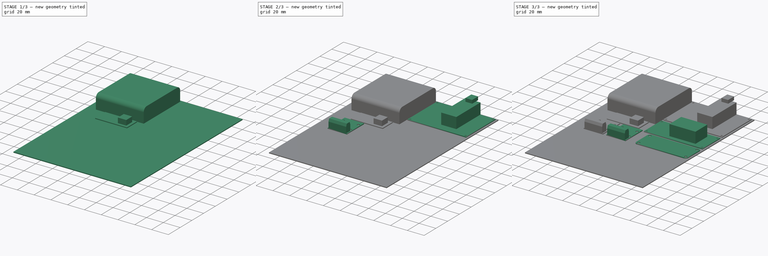
[diagram: build sequence overview — one tinted view per stage of 3, left to right]
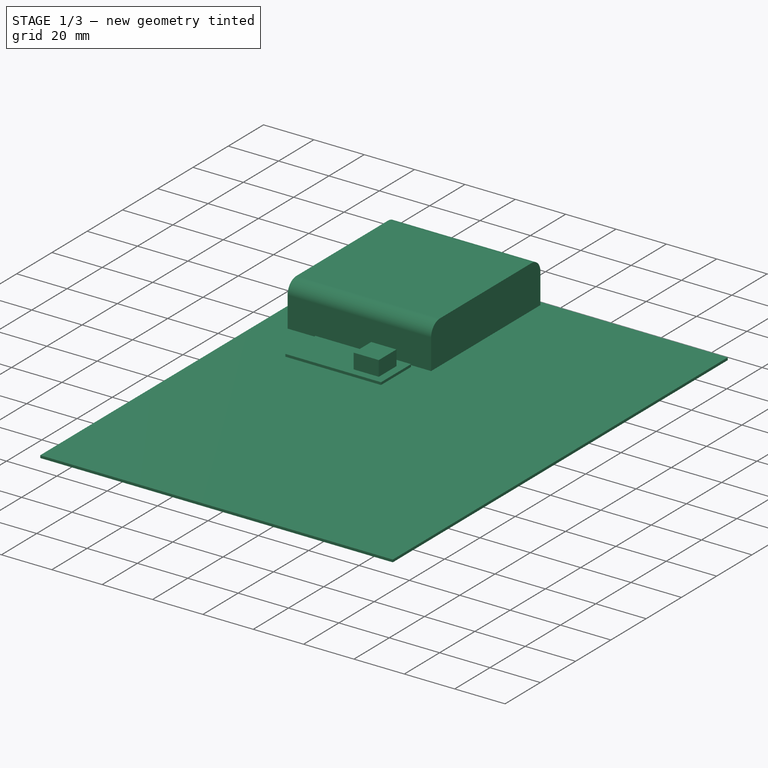
[diagram: stage 1 of 3 — iso view after this stage's code; geometry added in this stage tinted green]
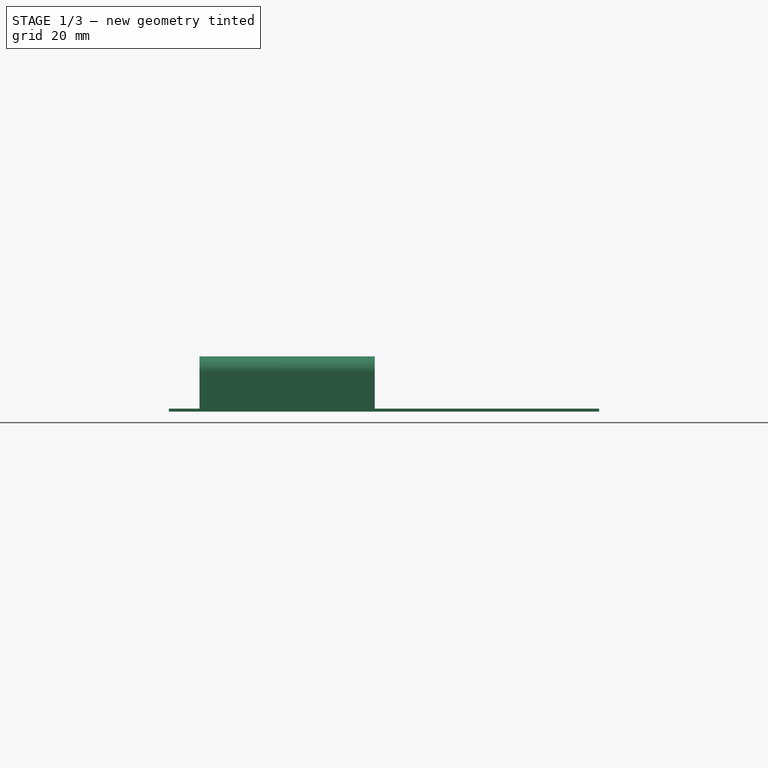
[diagram: stage 1 of 3 — front view after this stage's code; geometry added in this stage tinted green]
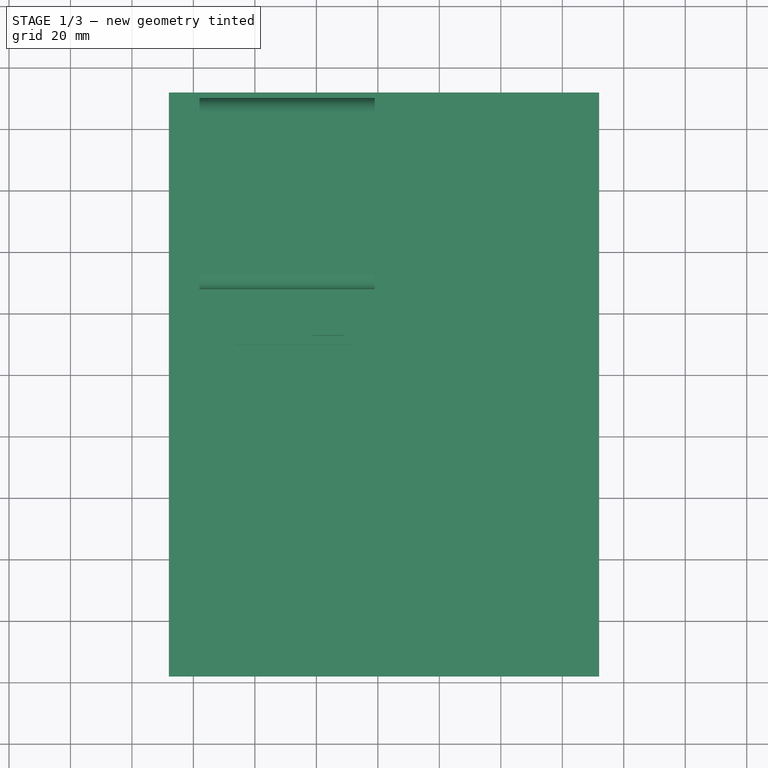
[diagram: stage 1 of 3 — top view after this stage's code; geometry added in this stage tinted green]
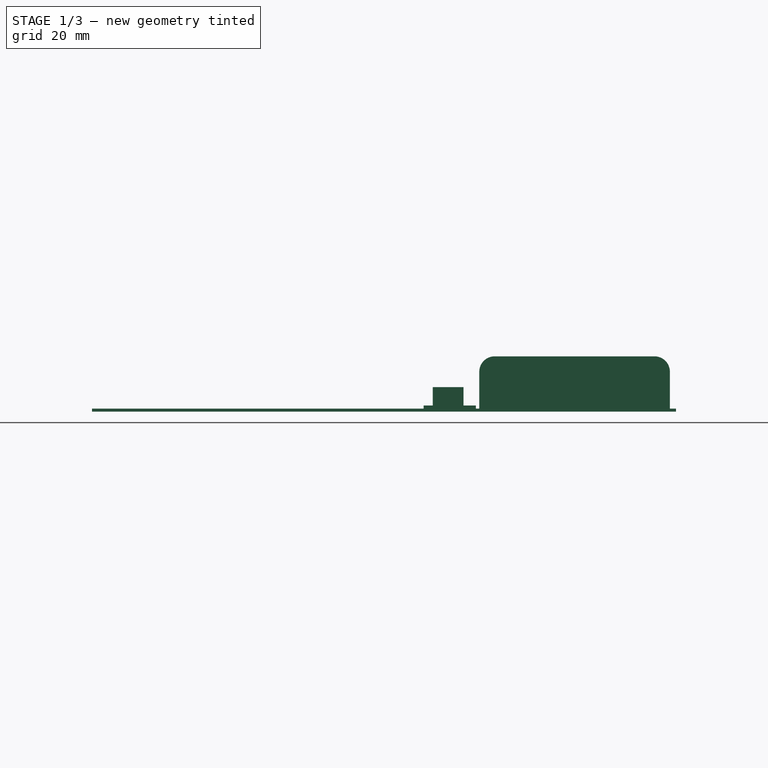
[diagram: stage 1 of 3 — right view after this stage's code; geometry added in this stage tinted green]
FCSTD DOCUMENT  (FreeCAD 0.19R24291 (Git))
Label: assemblage
License: All rights reserved
LicenseURL: http://en.wikipedia.org/wiki/All_rights_reserved
objects: App::FeaturePython×28, Part::FeaturePython×7, Sketcher::SketchObject×2, PartDesign::Pad×1, PartDesign::Body×1
note: 12 computed .brp shape members not serialized (recipe doc carries the construction recipe); baked Part::Feature solids carry a one-line shape summary decoded from their .brp

FEATURE [App::FeaturePython] planeCoincident_001  label="planeCoincident_001__arduino_board_001"  # a2plus constraint (typed FeaturePython)
  Object1 = b_TCA9548A_board_001_
  Object2 = b_arduino_board_001_
  ParentTreeObject = -> b_TCA9548A_board_001_
  SubElement1 = Face5
  SubElement2 = Face5
  Suppressed = false
  Type = plane
  directionConstraint = 0
  offset = 0
FEATURE [App::FeaturePython] planeCoincident_001_mirror  label="planeCoincident_001__TCA9548A_board_001"  # a2plus constraint (typed FeaturePython)
  Object1 = b_TCA9548A_board_001_
  Object2 = b_arduino_board_001_
  ParentTreeObject = -> b_arduino_board_001_
  SubElement1 = Face5
  SubElement2 = Face5
  Suppressed = false
  Type = plane
  directionConstraint = 0
  offset = 0
FEATURE [App::FeaturePython] planeCoincident_002  label="planeCoincident_002__arduino_board_001"  # a2plus constraint (typed FeaturePython)
  Object1 = b_TCA9548A_board_001_
  Object2 = b_arduino_board_001_
  ParentTreeObject = -> b_TCA9548A_board_001_
  SubElement1 = Face2
  SubElement2 = Face2
  Suppressed = false
  Type = plane
  directionConstraint = 0
  offset = 0
FEATURE [App::FeaturePython] planeCoincident_002_mirror  label="planeCoincident_002__TCA9548A_board_001"  # a2plus constraint (typed FeaturePython)
  Object1 = b_TCA9548A_board_001_
  Object2 = b_arduino_board_001_
  ParentTreeObject = -> b_arduino_board_001_
  SubElement1 = Face2
  SubElement2 = Face2
  Suppressed = false
  Type = plane
  directionConstraint = 0
  offset = 0
FEATURE [Sketcher::SketchObject] Sketch
  FullyConstrained = true
  MapMode = 5
  Support = -> [XY_Plane]
  sketch-geometry (4):
    g0: LineSegment StartX=72 StartY=52 StartZ=0 EndX=-68 EndY=52 EndZ=0
    g1: LineSegment StartX=-68 StartY=52 StartZ=0 EndX=-68 EndY=-138 EndZ=0
    g2: LineSegment StartX=-68 StartY=-138 StartZ=0 EndX=72 EndY=-138 EndZ=0
    g3: LineSegment StartX=72 StartY=-138 StartZ=0 EndX=72 EndY=52 EndZ=0
  constraints (12):
    c: Coincident(g0,g1)
    c: Coincident(g1,g2)
    c: Coincident(g2,g3)
    c: Coincident(g3,g0)
    c: Horizontal(g0)
    c: Horizontal(g2)
    c: Vertical(g1)
    c: Vertical(g3)
    c: DistanceY(g-1,g0) = 52
    c: DistanceX(g-1,g0) = 72
    c: DistanceX(g2,g2) = 140
    c: DistanceY(g3,g3) = 190
FEATURE [PartDesign::Pad] Pad
  Direction = (1,1,1)
  Length = 1
  Length2 = 100
  Profile = -> Sketch
  Reversed = true
  Type = 0
FEATURE [Part::FeaturePython] b_4AA_001_  label="4AA_001"  # a2plus imported part (geometry in sourceFile) (typed FeaturePython)
  Placement = pos=(-1,-12,8.60465e-06) rot=(0,0,1;1.5708rad)
  a2p_Version = V0.1
  fixedPosition = false
  objectType = a2pPart
  sourceFile = ./4AA.FCStd
  subassemblyImport = false
  timeLastImport = 1.62457e+09
  updateColors = true
FEATURE [App::FeaturePython] planeCoincident_006  label="planeCoincident_006__PCA9685_board_001"  # a2plus constraint (typed FeaturePython)
  Object1 = b_TCA9548A_board_001_
  Object2 = b_PCA9685_board_001_
  ParentTreeObject = -> b_TCA9548A_board_001_
  SubElement1 = Face3
  SubElement2 = Face7
  Suppressed = false
  Type = plane
  directionConstraint = 0
  offset = 0
FEATURE [App::FeaturePython] planeCoincident_006_mirror  label="planeCoincident_006__TCA9548A_board_001"  # a2plus constraint (typed FeaturePython)
  Object1 = b_TCA9548A_board_001_
  Object2 = b_PCA9685_board_001_
  ParentTreeObject = -> b_PCA9685_board_001_
  SubElement1 = Face3
  SubElement2 = Face7
  Suppressed = false
  Type = plane
  directionConstraint = 0
  offset = 0
FEATURE [App::FeaturePython] planeCoincident_009_mirror  label="planeCoincident_009__hbridge_002"  # a2plus constraint (typed FeaturePython)
  Object1 = b_hbridge_001_001
  Object2 = b_PCA9685_board_001_
  ParentTreeObject = -> b_PCA9685_board_001_
  SubElement1 = Face4
  SubElement2 = Face1
  Suppressed = false
  Type = plane
  directionConstraint = 0
  offset = 0
FEATURE [App::FeaturePython] planeCoincident_009  label="planeCoincident_009__PCA9685_board_001"  # a2plus constraint (typed FeaturePython)
  Object1 = b_hbridge_001_001
  Object2 = b_PCA9685_board_001_
  ParentTreeObject = -> b_hbridge_001_001
  SubElement1 = Face4
  SubElement2 = Face1
  Suppressed = false
  Type = plane
  directionConstraint = 0
  offset = 0
FEATURE [App::FeaturePython] planesParallel_003  label="planesParallel_003__hbridge_001"  # a2plus constraint (typed FeaturePython)
  Object1 = b_hbridge_001_001
  Object2 = b_hbridge_001_
  ParentTreeObject = -> b_hbridge_001_001
  SubElement1 = Face10
  SubElement2 = Face11
  Suppressed = false
  Type = planesParallel
  directionConstraint = 1
FEATURE [App::FeaturePython] planesParallel_003_mirror  label="planesParallel_003__hbridge_002"  # a2plus constraint (typed FeaturePython)
  Object1 = b_hbridge_001_001
  Object2 = b_hbridge_001_
  ParentTreeObject = -> b_hbridge_001_
  SubElement1 = Face10
  SubElement2 = Face11
  Suppressed = false
  Type = planesParallel
  directionConstraint = 1
FEATURE [App::FeaturePython] planeCoincident_008  label="planeCoincident_008__hbridge_001"  # a2plus constraint (typed FeaturePython)
  Object1 = b_hbridge_001_001
  Object2 = b_hbridge_001_
  ParentTreeObject = -> b_hbridge_001_001
  SubElement1 = Face12
  SubElement2 = Face12
  Suppressed = false
  Type = plane
  directionConstraint = 0
  offset = 0
FEATURE [App::FeaturePython] planeCoincident_008_mirror  label="planeCoincident_008__hbridge_002"  # a2plus constraint (typed FeaturePython)
  Object1 = b_hbridge_001_001
  Object2 = b_hbridge_001_
  ParentTreeObject = -> b_hbridge_001_
  SubElement1 = Face12
  SubElement2 = Face12
  Suppressed = false
  Type = plane
  directionConstraint = 0
  offset = 0
FEATURE [App::FeaturePython] planesParallel_002_mirror  label="planesParallel_002__hbridge_001"  # a2plus constraint (typed FeaturePython)
  Object1 = b_hbridge_001_
  Object2 = b_PCA9685_board_001_
  ParentTreeObject = -> b_PCA9685_board_001_
  SubElement1 = Face11
  SubElement2 = Face6
  Suppressed = false
  Type = planesParallel
  directionConstraint = 1
FEATURE [App::FeaturePython] planesParallel_002  label="planesParallel_002__PCA9685_board_001"  # a2plus constraint (typed FeaturePython)
  Object1 = b_hbridge_001_
  Object2 = b_PCA9685_board_001_
  ParentTreeObject = -> b_hbridge_001_
  SubElement1 = Face11
  SubElement2 = Face6
  Suppressed = false
  Type = planesParallel
  directionConstraint = 1
FEATURE [App::FeaturePython] planeCoincident_007  label="planeCoincident_007__hbridge_001"  # a2plus constraint (typed FeaturePython)
  Object1 = b_PCA9685_board_001_
  Object2 = b_hbridge_001_
  ParentTreeObject = -> b_PCA9685_board_001_
  SubElement1 = Face2
  SubElement2 = Face12
  Suppressed = false
  Type = plane
  directionConstraint = 0
  offset = 0
FEATURE [App::FeaturePython] planeCoincident_007_mirror  label="planeCoincident_007__PCA9685_board_001"  # a2plus constraint (typed FeaturePython)
  Object1 = b_PCA9685_board_001_
  Object2 = b_hbridge_001_
  ParentTreeObject = -> b_hbridge_001_
  SubElement1 = Face2
  SubElement2 = Face12
  Suppressed = false
  Type = plane
  directionConstraint = 0
  offset = 0
FEATURE [Part::FeaturePython] b_PCF8574T_board_001_  label="PCF8574T_board_001"  # a2plus imported part (geometry in sourceFile) (typed FeaturePython)
  Placement = pos=(-46.1761,-30.1269,1.19358e-05) rot=(0,0,1;0rad)
  a2p_Version = V0.1
  fixedPosition = false
  objectType = a2pPart
  sourceFile = ./PCF8574T_board.FCStd
  subassemblyImport = false
  timeLastImport = 1.62457e+09
  updateColors = true
FEATURE [App::FeaturePython] planeCoincident_010  label="planeCoincident_010__arduino_board_001"  # a2plus constraint (typed FeaturePython)
  Object1 = b_4AA_001_
  Object2 = b_arduino_board_001_
  ParentTreeObject = -> b_4AA_001_
  SubElement1 = Face6
  SubElement2 = Face6
  Suppressed = false
  Type = plane
  directionConstraint = 0
  offset = 0
FEATURE [App::FeaturePython] planeCoincident_010_mirror  label="planeCoincident_010__4AA_001"  # a2plus constraint (typed FeaturePython)
  Object1 = b_4AA_001_
  Object2 = b_arduino_board_001_
  ParentTreeObject = -> b_arduino_board_001_
  SubElement1 = Face6
  SubElement2 = Face6
  Suppressed = false
  Type = plane
  directionConstraint = 0
  offset = 0
FEATURE [App::FeaturePython] planeCoincident_011  label="planeCoincident_011__PCF8574T_board_001"  # a2plus constraint (typed FeaturePython)
  Object1 = b_4AA_001_
  Object2 = b_PCF8574T_board_001_
  ParentTreeObject = -> b_4AA_001_
  SubElement1 = Face4
  SubElement2 = Face4
  Suppressed = false
  Type = plane
  directionConstraint = 0
  offset = 0
FEATURE [App::FeaturePython] planeCoincident_011_mirror  label="planeCoincident_011__4AA_001"  # a2plus constraint (typed FeaturePython)
  Object1 = b_4AA_001_
  Object2 = b_PCF8574T_board_001_
  ParentTreeObject = -> b_PCF8574T_board_001_
  SubElement1 = Face4
  SubElement2 = Face4
  Suppressed = false
  Type = plane
  directionConstraint = 0
  offset = 0
FEATURE [Sketcher::SketchObject] Sketch001
  FullyConstrained = true
  MapMode = 5
  Support = -> [Pad]
FEATURE [PartDesign::Body] Body
  Group = -> [Sketch,Pad,Sketch001]
  Origin = -> Origin
  Tip = -> Pad
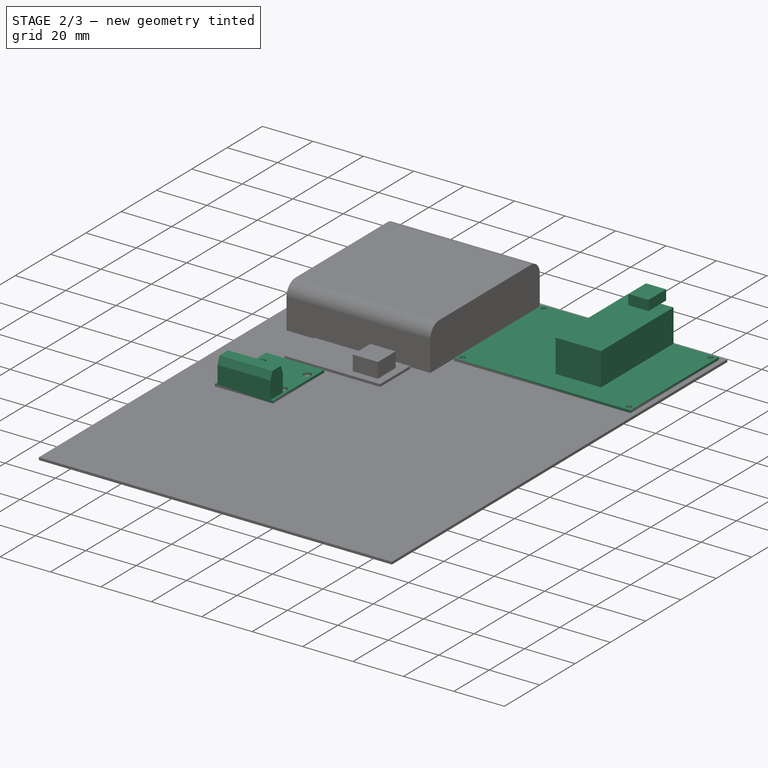
[diagram: stage 2 of 3 — iso view after this stage's code; geometry added in this stage tinted green]
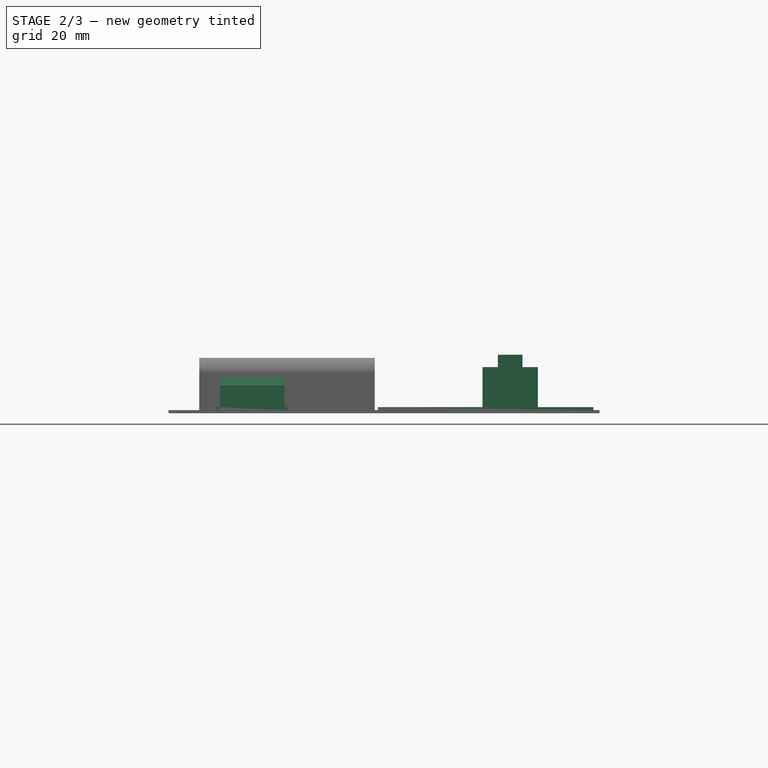
[diagram: stage 2 of 3 — front view after this stage's code; geometry added in this stage tinted green]
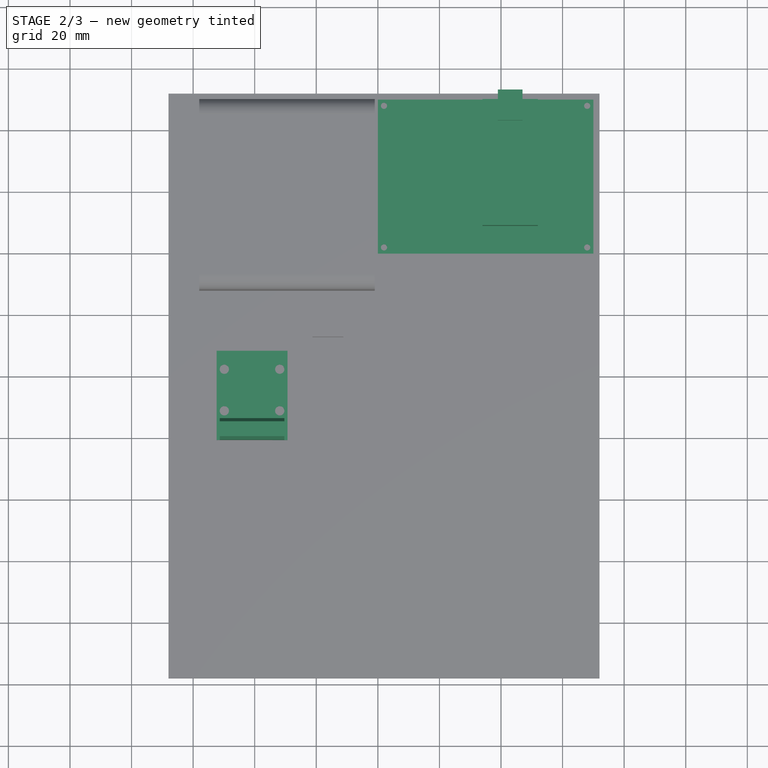
[diagram: stage 2 of 3 — top view after this stage's code; geometry added in this stage tinted green]
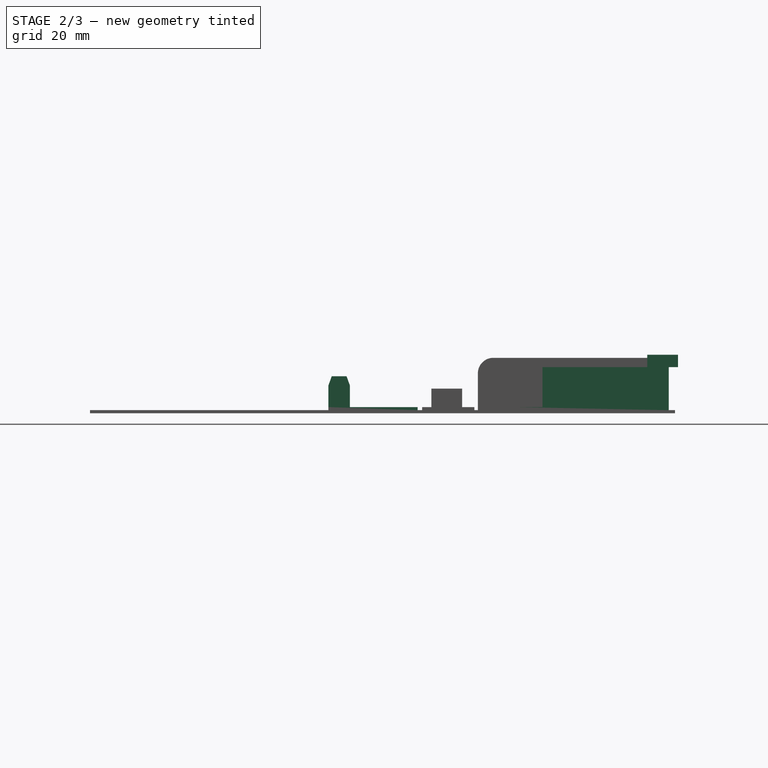
[diagram: stage 2 of 3 — right view after this stage's code; geometry added in this stage tinted green]
FEATURE [Part::FeaturePython] b_arduino_board_001_  label="arduino_board_001"  # a2plus imported part (geometry in sourceFile) (typed FeaturePython)
  a2p_Version = V0.1
  fixedPosition = true
  objectType = a2pPart
  sourceFile = ./arduino_board.FCStd
  subassemblyImport = false
  timeLastImport = 1.62457e+09
  updateColors = true
FEATURE [App::FeaturePython] planeCoincident_005  label="planeCoincident_005__PCA9685_board_001"  # a2plus constraint (typed FeaturePython)
  Object1 = b_TCA9548A_board_001_
  Object2 = b_PCA9685_board_001_
  ParentTreeObject = -> b_TCA9548A_board_001_
  SubElement1 = Face4
  SubElement2 = Face2
  Suppressed = false
  Type = plane
  directionConstraint = 0
  offset = 0
FEATURE [App::FeaturePython] planeCoincident_005_mirror  label="planeCoincident_005__TCA9548A_board_001"  # a2plus constraint (typed FeaturePython)
  Object1 = b_TCA9548A_board_001_
  Object2 = b_PCA9685_board_001_
  ParentTreeObject = -> b_PCA9685_board_001_
  SubElement1 = Face4
  SubElement2 = Face2
  Suppressed = false
  Type = plane
  directionConstraint = 0
  offset = 0
FEATURE [Part::FeaturePython] b_hbridge_001_  label="hbridge_001"  # a2plus imported part (geometry in sourceFile) (typed FeaturePython)
  Placement = pos=(-52.3636,-31.5679,-7.08187e-07) rot=(0,0,-1;1.5708rad)
  a2p_Version = V0.1
  fixedPosition = false
  objectType = a2pPart
  sourceFile = ./hbridge.FCStd
  subassemblyImport = false
  timeLastImport = 1.62457e+09
  updateColors = true
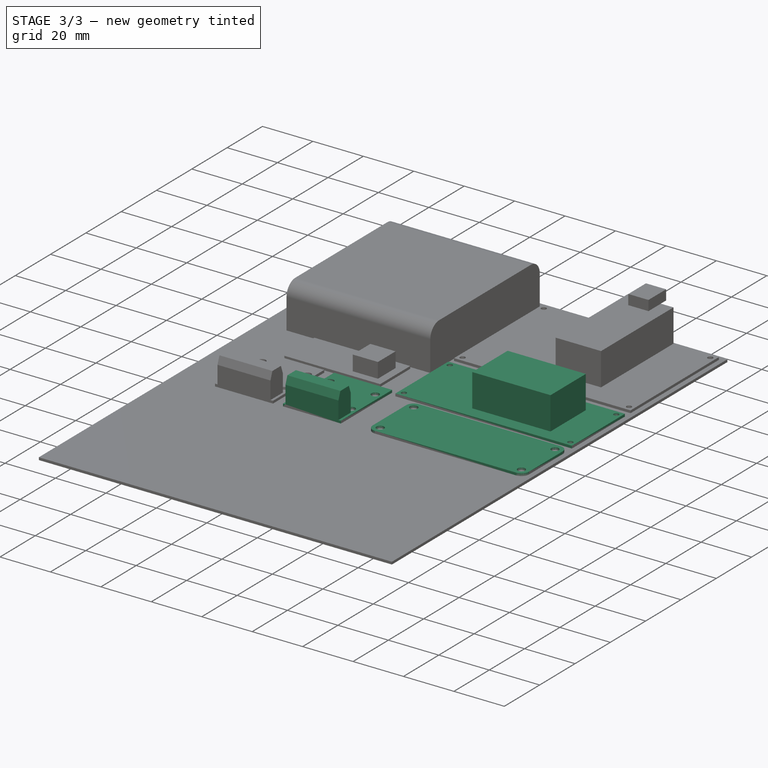
[diagram: stage 3 of 3 — iso view after this stage's code; geometry added in this stage tinted green]
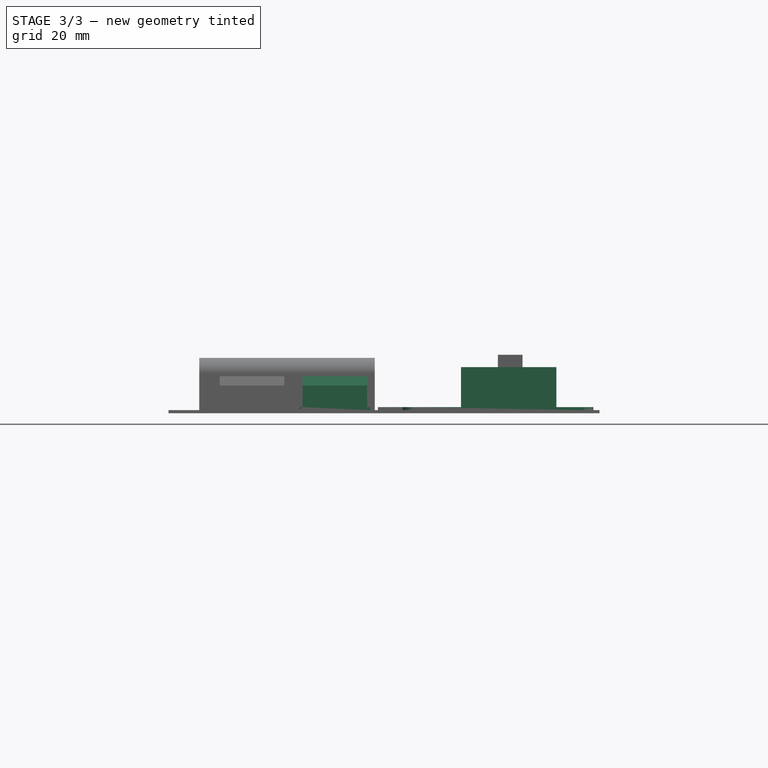
[diagram: stage 3 of 3 — front view after this stage's code; geometry added in this stage tinted green]
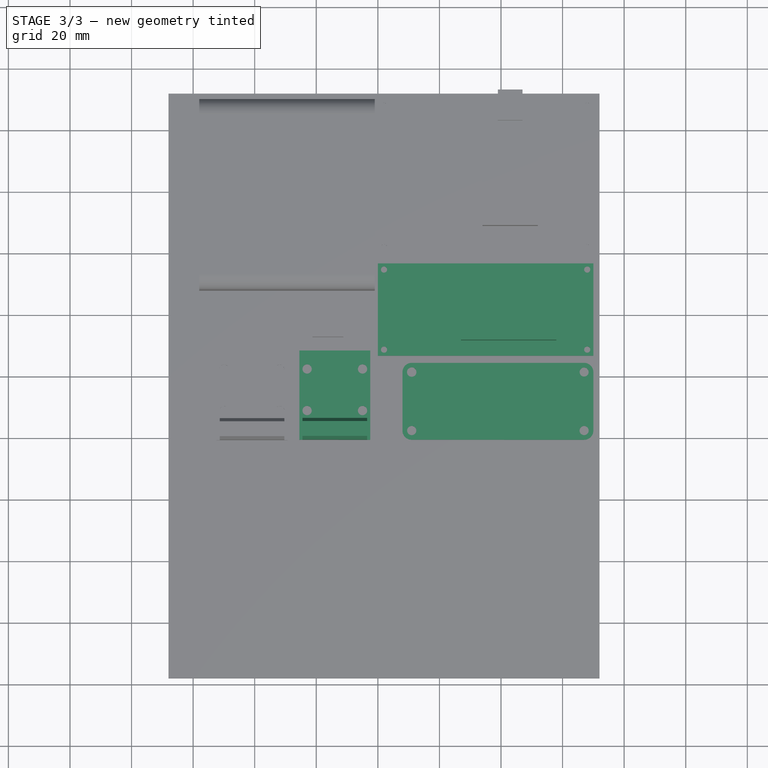
[diagram: stage 3 of 3 — top view after this stage's code; geometry added in this stage tinted green]
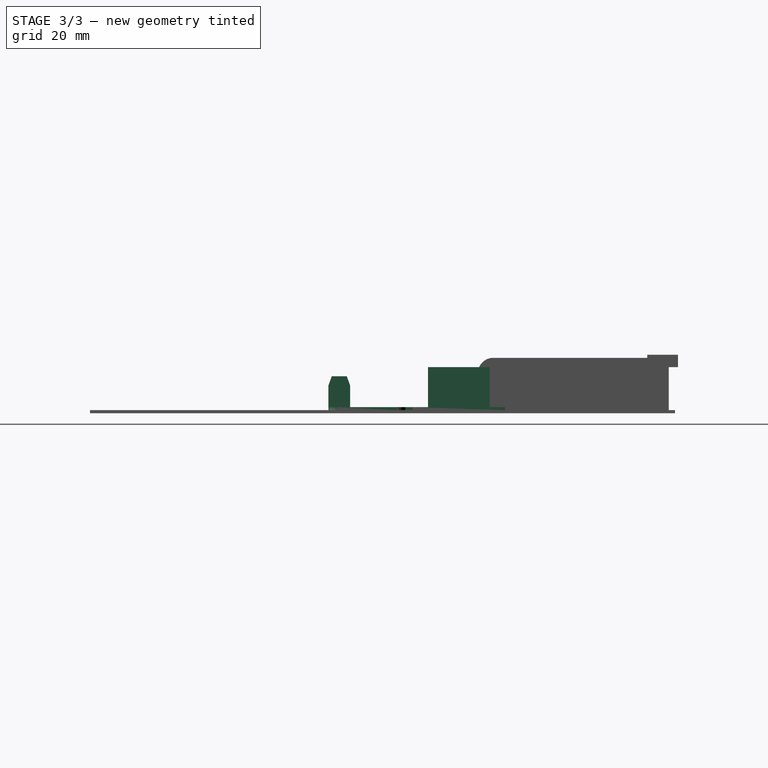
[diagram: stage 3 of 3 — right view after this stage's code; geometry added in this stage tinted green]
FEATURE [Part::FeaturePython] b_TCA9548A_board_001_  label="TCA9548A_board_001"  # a2plus imported part (geometry in sourceFile) (typed FeaturePython)
  Placement = pos=(-2.08906e-09,-33.1948,-3.67799e-08) rot=(0,0,1;0rad)
  a2p_Version = V0.1
  fixedPosition = false
  objectType = a2pPart
  sourceFile = ./TCA9548A_board.FCStd
  subassemblyImport = false
  timeLastImport = 1.62457e+09
  updateColors = true
FEATURE [App::FeaturePython] planeCoincident_003  label="planeCoincident_003__4AA_001"  # a2plus constraint (typed FeaturePython)
  Object1 = b_arduino_board_001_
  Object2 = b_4AA_001_
  ParentTreeObject = -> b_arduino_board_001_
  SubElement1 = Face4
  SubElement2 = Face4
  Suppressed = false
  Type = plane
  directionConstraint = 0
  offset = 0
FEATURE [App::FeaturePython] planeCoincident_003_mirror  label="planeCoincident_003__arduino_board_001"  # a2plus constraint (typed FeaturePython)
  Object1 = b_arduino_board_001_
  Object2 = b_4AA_001_
  ParentTreeObject = -> b_4AA_001_
  SubElement1 = Face4
  SubElement2 = Face4
  Suppressed = false
  Type = plane
  directionConstraint = 0
  offset = 0
FEATURE [App::FeaturePython] planesParallel_001  label="planesParallel_001__arduino_board_001"  # a2plus constraint (typed FeaturePython)
  Object1 = b_4AA_001_
  Object2 = b_arduino_board_001_
  ParentTreeObject = -> b_4AA_001_
  SubElement1 = Face8
  SubElement2 = Face2
  Suppressed = false
  Type = planesParallel
  directionConstraint = 0
FEATURE [App::FeaturePython] planesParallel_001_mirror  label="planesParallel_001__4AA_001"  # a2plus constraint (typed FeaturePython)
  Object1 = b_4AA_001_
  Object2 = b_arduino_board_001_
  ParentTreeObject = -> b_arduino_board_001_
  SubElement1 = Face8
  SubElement2 = Face2
  Suppressed = false
  Type = planesParallel
  directionConstraint = 0
FEATURE [App::FeaturePython] planeCoincident_004  label="planeCoincident_004__arduino_board_001"  # a2plus constraint (typed FeaturePython)
  Object1 = b_4AA_001_
  Object2 = b_arduino_board_001_
  ParentTreeObject = -> b_4AA_001_
  SubElement1 = Face1
  SubElement2 = Face2
  Suppressed = false
  Type = plane
  directionConstraint = 1
  offset = 1
FEATURE [App::FeaturePython] planeCoincident_004_mirror  label="planeCoincident_004__4AA_001"  # a2plus constraint (typed FeaturePython)
  Object1 = b_4AA_001_
  Object2 = b_arduino_board_001_
  ParentTreeObject = -> b_arduino_board_001_
  SubElement1 = Face1
  SubElement2 = Face2
  Suppressed = false
  Type = plane
  directionConstraint = 1
  offset = 1
FEATURE [Part::FeaturePython] b_PCA9685_board_001_  label="PCA9685_board_001"  # a2plus imported part (geometry in sourceFile) (typed FeaturePython)
  Placement = pos=(8,-60.4909,-1.23061e-07) rot=(0,0,1;0rad)
  a2p_Version = V0.1
  fixedPosition = false
  objectType = a2pPart
  sourceFile = ./PCA9685_board.FCStd
  subassemblyImport = false
  timeLastImport = 1.62457e+09
  updateColors = true
FEATURE [Part::FeaturePython] b_hbridge_001_001  label="hbridge_002"  # a2plus imported part (geometry in sourceFile) (typed FeaturePython)
  Placement = pos=(-25.4737,-31.4909,-8.41612e-07) rot=(0,0,-1;1.5708rad)
  a2p_Version = V0.1
  fixedPosition = false
  objectType = a2pPart
  sourceFile = ./hbridge.FCStd
  subassemblyImport = false
  timeLastImport = 1.62457e+09
  updateColors = true
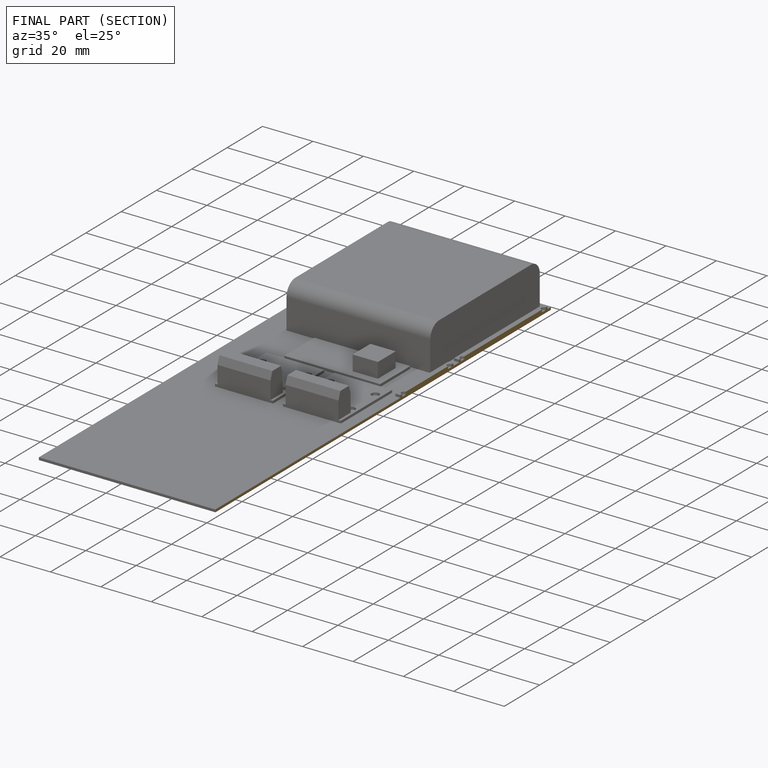
[diagram: finished part — half-section view (interior)]
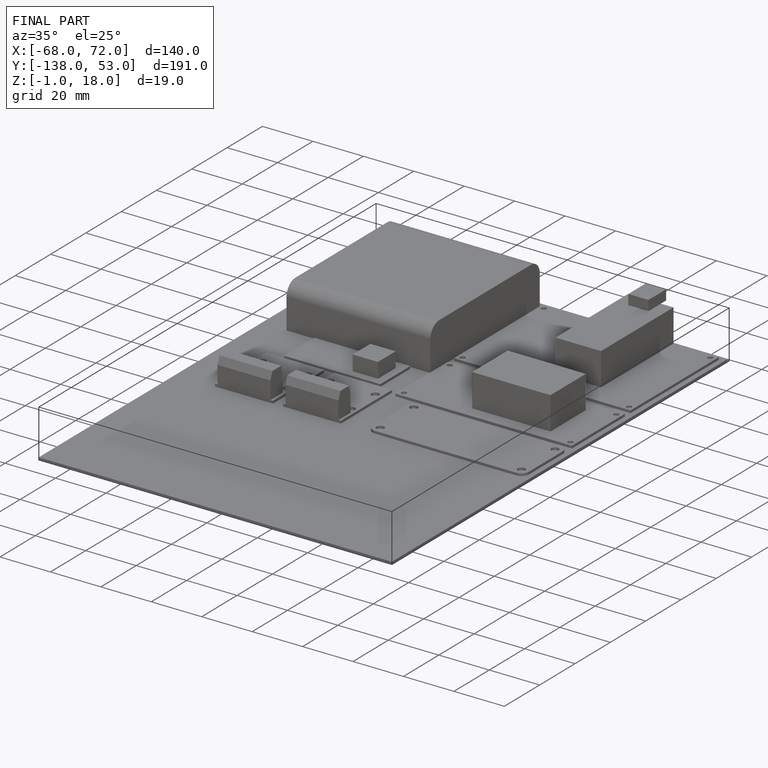
[diagram: finished part — iso view with bounding-box wireframe]
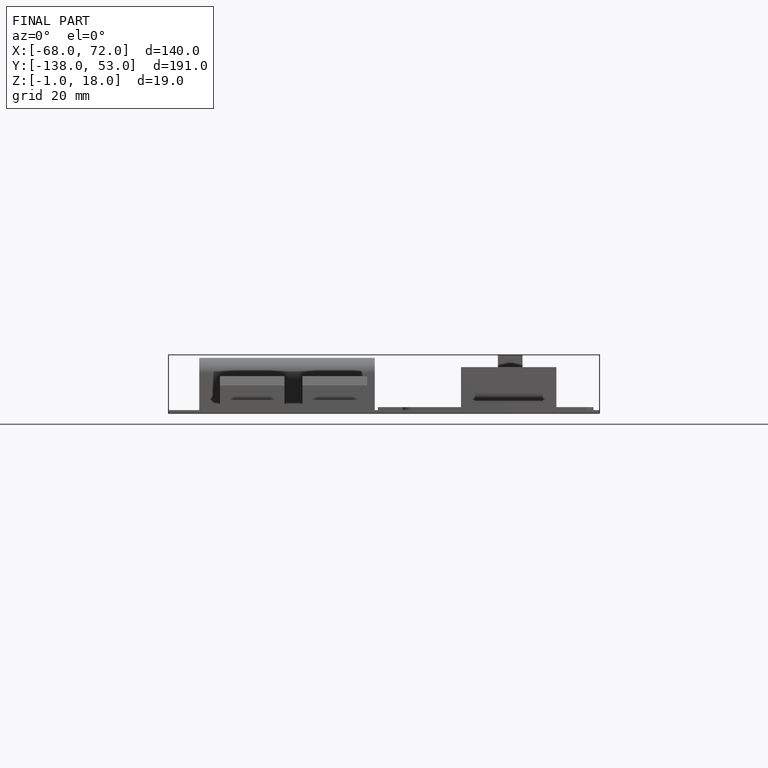
[diagram: finished part — front view with bounding-box wireframe]
